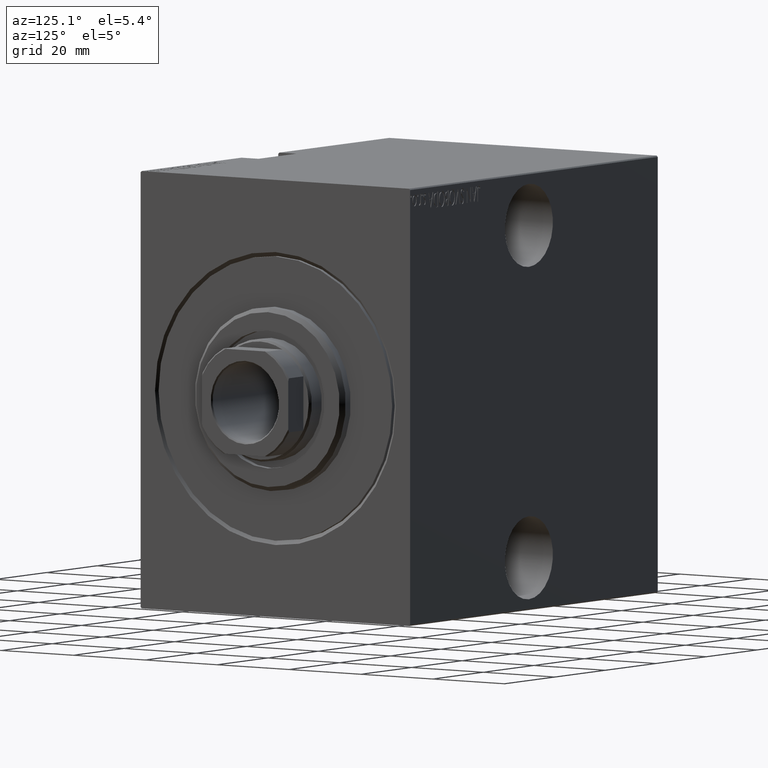
[diagram: clean part render]
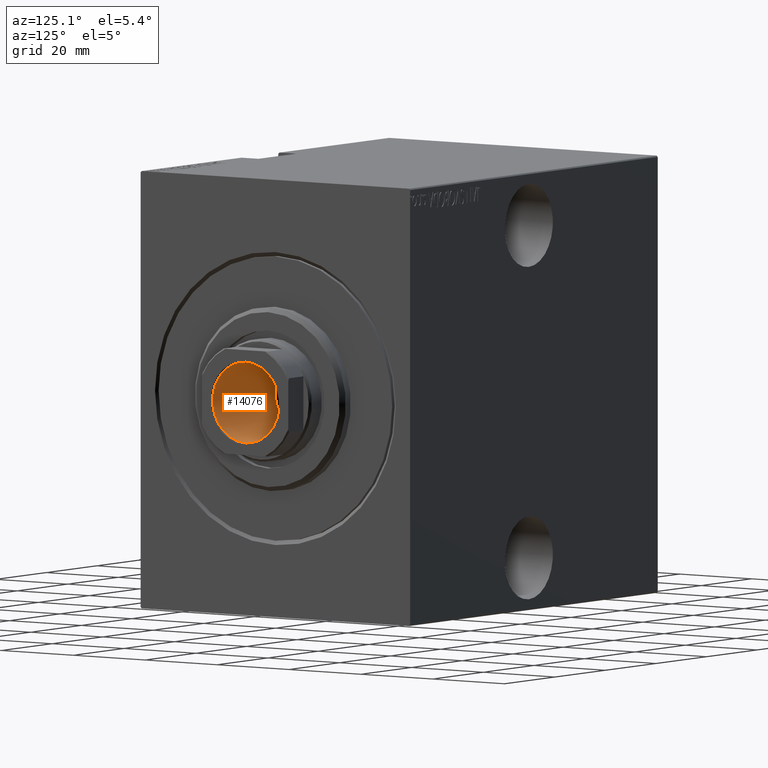
[diagram: same view with one face highlighted and labeled with its STEP entity id]
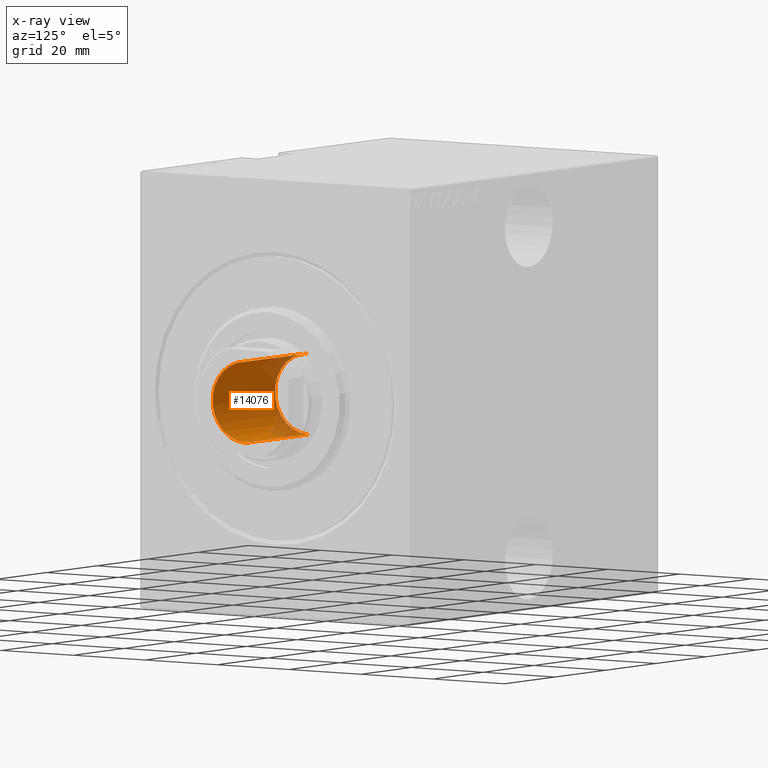
[diagram: x-ray of the same camera — body ghosted, the highlighted face saturated]
A machine part, auxiliary view. The second image highlights one B-rep face of the part: STEP entity #14076.
The next image is the same camera in x-ray: the body ghosted, the highlighted face saturated — about 15% of this face is hidden behind the body in this view.
In plain terms, the highlighted cylindrical surface (partial cylindrical patch) has radius 9.25 mm, axis along (1, 0, -0).
Its self-contained STEP definition (entity closure, byte-faithful):
#304 = AXIS2_PLACEMENT_3D ( 'NONE', #3876, #33167, #30156 ) ;
#2610 = CYLINDRICAL_SURFACE ( 'NONE', #6317, 9.249999999999994671 ) ;
#3404 = ORIENTED_EDGE ( 'NONE', *, *, #41117, .F. ) ;
#3511 = AXIS2_PLACEMENT_3D ( 'NONE', #6775, #16058, #30026 ) ;
#3876 = CARTESIAN_POINT ( 'NONE',  ( 0.000000000000000000, 0.000000000000000000, 71.00000000000001421 ) ) ;
#6074 = ORIENTED_EDGE ( 'NONE', *, *, #18131, .T. ) ;
#6317 = AXIS2_PLACEMENT_3D ( 'NONE', #8429, #31274, #38577 ) ;
#6775 = CARTESIAN_POINT ( 'NONE',  ( 0.000000000000000000, 0.000000000000000000, 95.70000000000000284 ) ) ;
#7109 = LINE ( 'NONE', #13153, #23187 ) ;
#7671 = LINE ( 'NONE', #27491, #40807 ) ;
#8429 = CARTESIAN_POINT ( 'NONE',  ( 0.000000000000000000, 0.000000000000000000, 96.00000000000000000 ) ) ;
#12808 = EDGE_CURVE ( 'NONE', #16985, #20186, #40659, .T. ) ;
#13153 = CARTESIAN_POINT ( 'NONE',  ( 9.249999999999994671, 0.000000000000000000, 96.00000000000000000 ) ) ;
#14076 = ADVANCED_FACE ( 'NONE', ( #40952 ), #2610, .F. ) ;
#16058 = DIRECTION ( 'NONE',  ( 0.000000000000000000, 0.000000000000000000, 1.000000000000000000 ) ) ;
#16985 = VERTEX_POINT ( 'NONE', #30609 ) ;
#18131 = EDGE_CURVE ( 'NONE', #23324, #16985, #7671, .T. ) ;
#18245 = ORIENTED_EDGE ( 'NONE', *, *, #32948, .F. ) ;
#20186 = VERTEX_POINT ( 'NONE', #22783 ) ;
#22783 = CARTESIAN_POINT ( 'NONE',  ( 9.249999999999994671, 0.000000000000000000, 95.70000000000000284 ) ) ;
#23187 = VECTOR ( 'NONE', #32543, 1000.000000000000000 ) ;
#23324 = VERTEX_POINT ( 'NONE', #35115 ) ;
#23919 = EDGE_LOOP ( 'NONE', ( #18245, #6074, #28475, #3404 ) ) ;
#27127 = CIRCLE ( 'NONE', #304, 9.249999999999994671 ) ;
#27491 = CARTESIAN_POINT ( 'NONE',  ( -9.249999999999994671, 1.132798289211300909E-15, 96.00000000000000000 ) ) ;
#28475 = ORIENTED_EDGE ( 'NONE', *, *, #12808, .T. ) ;
#29431 = CARTESIAN_POINT ( 'NONE',  ( 9.249999999999994671, 0.000000000000000000, 71.00000000000001421 ) ) ;
#30026 = DIRECTION ( 'NONE',  ( 1.000000000000000000, 0.000000000000000000, 0.000000000000000000 ) ) ;
#30156 = DIRECTION ( 'NONE',  ( 1.000000000000000000, 0.000000000000000000, 0.000000000000000000 ) ) ;
#30609 = CARTESIAN_POINT ( 'NONE',  ( -9.249999999999994671, 1.132798289211300909E-15, 95.70000000000000284 ) ) ;
#30706 = VERTEX_POINT ( 'NONE', #29431 ) ;
#31274 = DIRECTION ( 'NONE',  ( -0.000000000000000000, -0.000000000000000000, 1.000000000000000000 ) ) ;
#32543 = DIRECTION ( 'NONE',  ( -0.000000000000000000, -0.000000000000000000, 1.000000000000000000 ) ) ;
#32948 = EDGE_CURVE ( 'NONE', #23324, #30706, #27127, .T. ) ;
#33167 = DIRECTION ( 'NONE',  ( -0.000000000000000000, -0.000000000000000000, 1.000000000000000000 ) ) ;
#35115 = CARTESIAN_POINT ( 'NONE',  ( -9.249999999999994671, 1.132798289211300909E-15, 71.00000000000001421 ) ) ;
#38577 = DIRECTION ( 'NONE',  ( 1.000000000000000000, 0.000000000000000000, 0.000000000000000000 ) ) ;
#40615 = DIRECTION ( 'NONE',  ( -0.000000000000000000, -0.000000000000000000, 1.000000000000000000 ) ) ;
#40659 = CIRCLE ( 'NONE', #3511, 9.249999999999994671 ) ;
#40807 = VECTOR ( 'NONE', #40615, 1000.000000000000000 ) ;
#40952 = FACE_OUTER_BOUND ( 'NONE', #23919, .T. ) ;
#41117 = EDGE_CURVE ( 'NONE', #30706, #20186, #7109, .T. ) ;